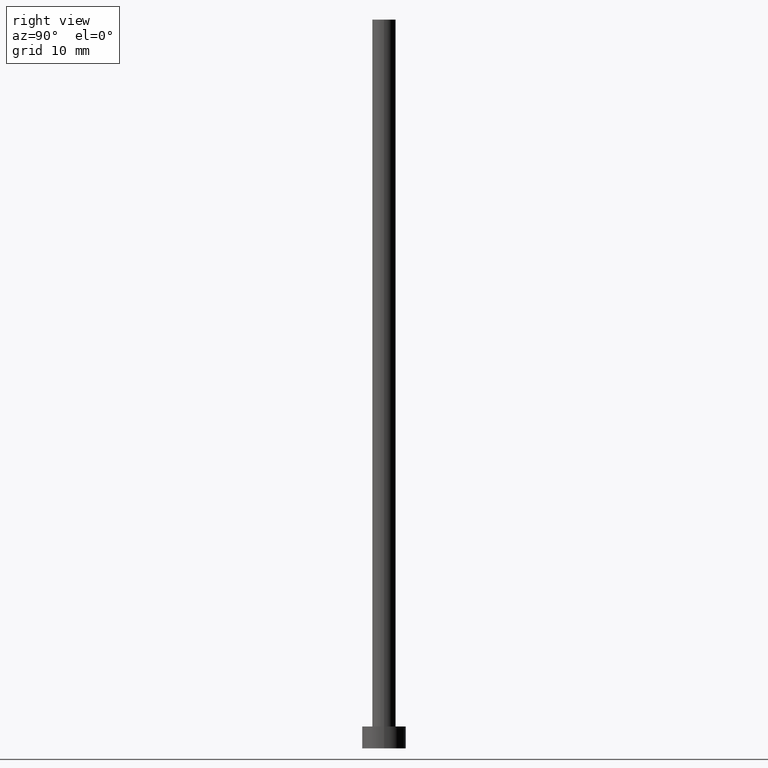
[diagram: clean part render]
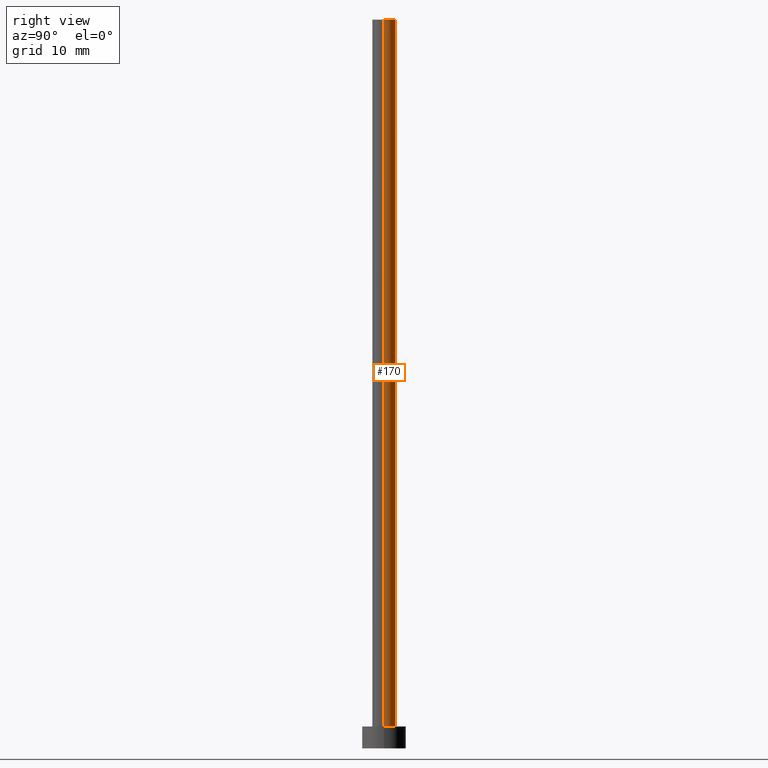
[diagram: same view with one face highlighted and labeled with its STEP entity id]
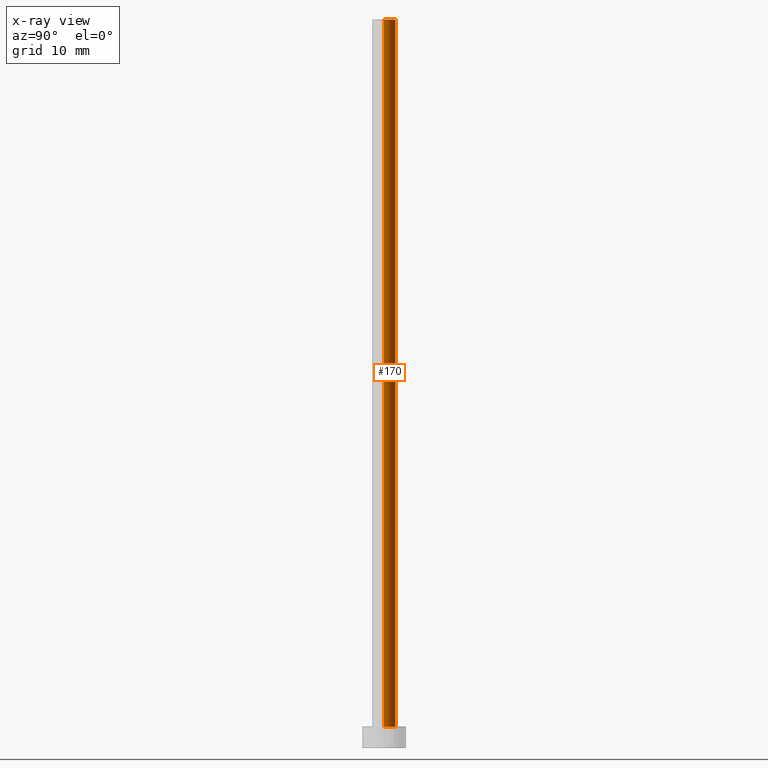
[diagram: x-ray of the same camera — body ghosted, the highlighted face saturated]
A machine part, right view. The second image highlights one B-rep face of the part: STEP entity #170.
The next image is the same camera in x-ray: the body ghosted, the highlighted face saturated — about 0% of this face is hidden behind the body in this view.
In plain terms, the highlighted cylindrical surface (edge-blend (fillet) strip) has radius 1.6 mm, axis along (-0, -0, -1).
Its self-contained STEP definition (entity closure, byte-faithful):
#1 = EDGE_CURVE ( 'NONE', #93, #252, #37, .T. ) ;
#4 = FACE_OUTER_BOUND ( 'NONE', #247, .T. ) ;
#7 = DIRECTION ( 'NONE',  ( 1.000000000000000000, 0.000000000000000000, 0.000000000000000000 ) ) ;
#10 = CARTESIAN_POINT ( 'NONE',  ( 1.600000000000000089, 1.959434878635764737E-16, 100.0000000000000000 ) ) ;
#25 = DIRECTION ( 'NONE',  ( 1.000000000000000000, 0.000000000000000000, 0.000000000000000000 ) ) ;
#33 = ORIENTED_EDGE ( 'NONE', *, *, #82, .T. ) ;
#37 = LINE ( 'NONE', #177, #135 ) ;
#39 = CARTESIAN_POINT ( 'NONE',  ( 1.600000000000000089, 1.959434878635764737E-16, 100.0000000000000000 ) ) ;
#43 = AXIS2_PLACEMENT_3D ( 'NONE', #154, #84, #7 ) ;
#66 = AXIS2_PLACEMENT_3D ( 'NONE', #201, #215, #80 ) ;
#77 = DIRECTION ( 'NONE',  ( -0.000000000000000000, -0.000000000000000000, -1.000000000000000000 ) ) ;
#80 = DIRECTION ( 'NONE',  ( -1.000000000000000000, 0.000000000000000000, 0.000000000000000000 ) ) ;
#82 = EDGE_CURVE ( 'NONE', #149, #252, #113, .T. ) ;
#84 = DIRECTION ( 'NONE',  ( 0.000000000000000000, 0.000000000000000000, 1.000000000000000000 ) ) ;
#93 = VERTEX_POINT ( 'NONE', #240 ) ;
#95 = EDGE_CURVE ( 'NONE', #208, #149, #214, .T. ) ;
#113 = CIRCLE ( 'NONE', #43, 1.600000000000000089 ) ;
#127 = CIRCLE ( 'NONE', #251, 1.600000000000000089 ) ;
#131 = ORIENTED_EDGE ( 'NONE', *, *, #1, .F. ) ;
#133 = DIRECTION ( 'NONE',  ( 0.000000000000000000, 0.000000000000000000, 1.000000000000000000 ) ) ;
#135 = VECTOR ( 'NONE', #77, 1000.000000000000000 ) ;
#137 = CARTESIAN_POINT ( 'NONE',  ( 1.600000000000000089, 1.959434878635764737E-16, 3.000000000000000000 ) ) ;
#138 = CYLINDRICAL_SURFACE ( 'NONE', #66, 1.600000000000000089 ) ;
#143 = ORIENTED_EDGE ( 'NONE', *, *, #95, .T. ) ;
#145 = CARTESIAN_POINT ( 'NONE',  ( -1.600000000000000089, 0.000000000000000000, 3.000000000000000000 ) ) ;
#149 = VERTEX_POINT ( 'NONE', #137 ) ;
#154 = CARTESIAN_POINT ( 'NONE',  ( 0.000000000000000000, 0.000000000000000000, 3.000000000000000000 ) ) ;
#155 = CARTESIAN_POINT ( 'NONE',  ( 0.000000000000000000, 0.000000000000000000, 100.0000000000000000 ) ) ;
#156 = DIRECTION ( 'NONE',  ( -0.000000000000000000, -0.000000000000000000, -1.000000000000000000 ) ) ;
#168 = ORIENTED_EDGE ( 'NONE', *, *, #179, .F. ) ;
#170 = ADVANCED_FACE ( 'NONE', ( #4 ), #138, .T. ) ;
#177 = CARTESIAN_POINT ( 'NONE',  ( -1.600000000000000089, 0.000000000000000000, 100.0000000000000000 ) ) ;
#179 = EDGE_CURVE ( 'NONE', #208, #93, #127, .T. ) ;
#186 = VECTOR ( 'NONE', #156, 1000.000000000000000 ) ;
#201 = CARTESIAN_POINT ( 'NONE',  ( 0.000000000000000000, 0.000000000000000000, 100.0000000000000000 ) ) ;
#208 = VERTEX_POINT ( 'NONE', #10 ) ;
#214 = LINE ( 'NONE', #39, #186 ) ;
#215 = DIRECTION ( 'NONE',  ( -0.000000000000000000, -0.000000000000000000, -1.000000000000000000 ) ) ;
#240 = CARTESIAN_POINT ( 'NONE',  ( -1.600000000000000089, 0.000000000000000000, 100.0000000000000000 ) ) ;
#247 = EDGE_LOOP ( 'NONE', ( #168, #143, #33, #131 ) ) ;
#251 = AXIS2_PLACEMENT_3D ( 'NONE', #155, #133, #25 ) ;
#252 = VERTEX_POINT ( 'NONE', #145 ) ;